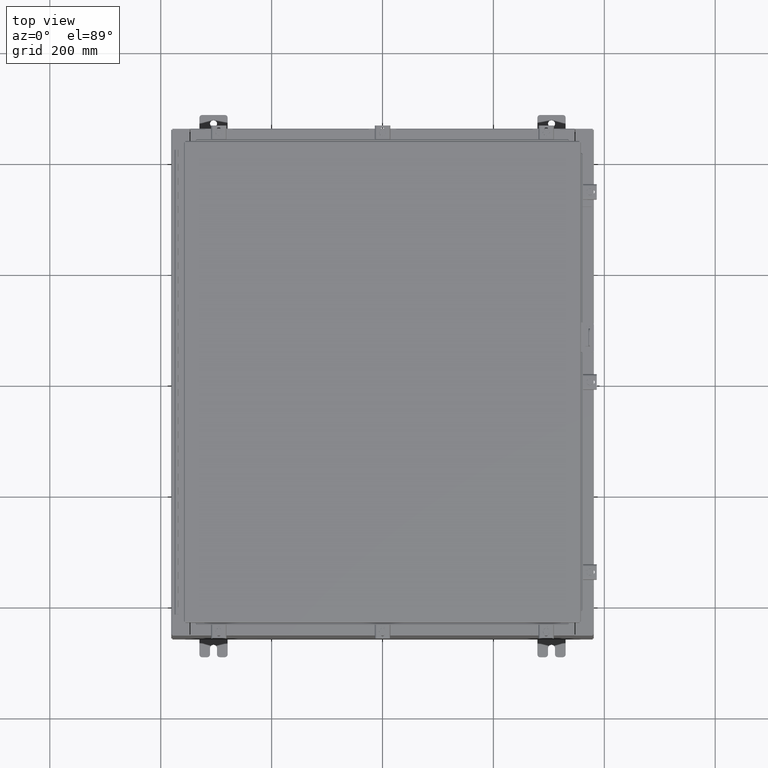
[diagram: clean part render]
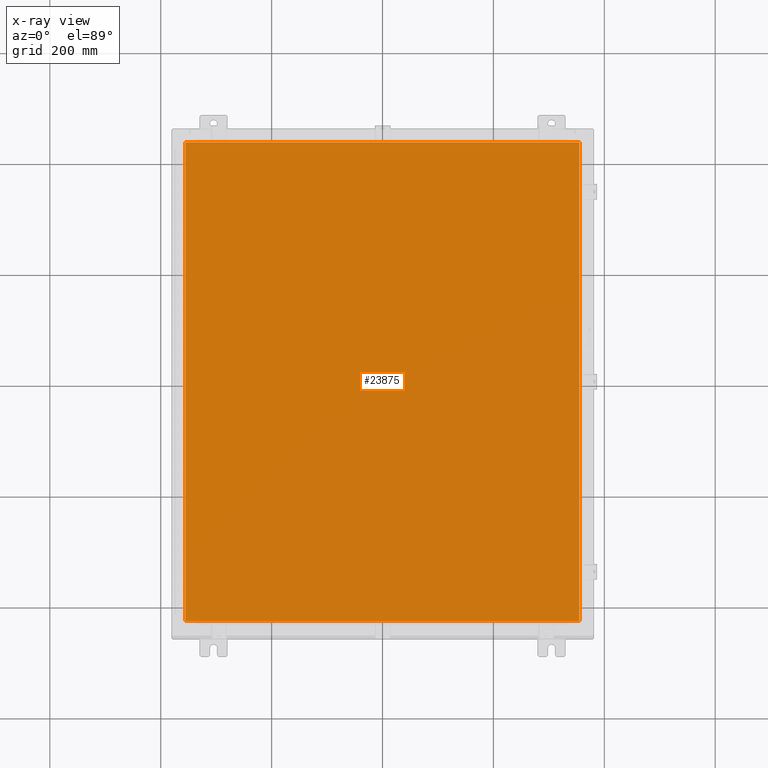
[diagram: x-ray — body ghosted, one internal face saturated and labeled with its STEP entity id]
A machine part, top view, then the same camera in x-ray: the body is ghosted and one INTERNAL B-rep face — a face not visible from any outside direction — is saturated and labeled: STEP entity #23875.
In plain terms, the highlighted planar face has unit normal (0, 0, -1).
Its self-contained STEP definition (entity closure, byte-faithful):
#784 = ORIENTED_EDGE ( 'NONE', *, *, #13631, .F. ) ;
#1005 = CARTESIAN_POINT ( 'NONE',  ( -13.99030000000000700, -17.00630000000000000, -0.07470000000000015500 ) ) ;
#2150 = CARTESIAN_POINT ( 'NONE',  ( 13.99029999999999200, -17.00630000000000000, -0.07470000000000015500 ) ) ;
#5559 = DIRECTION ( 'NONE',  ( 0.0000000000000000000, 1.000000000000000000, 0.0000000000000000000 ) ) ;
#5996 = PLANE ( 'NONE',  #12026 ) ;
#8399 = CARTESIAN_POINT ( 'NONE',  ( -13.99030000000000700, -17.00630000000000000, -0.07470000000000015500 ) ) ;
#9388 = DIRECTION ( 'NONE',  ( -1.000000000000000000, 0.0000000000000000000, -0.0000000000000000000 ) ) ;
#10831 = LINE ( 'NONE', #22026, #19842 ) ;
#12026 = AXIS2_PLACEMENT_3D ( 'NONE', #16067, #29628, #9388 ) ;
#13180 = DIRECTION ( 'NONE',  ( -1.000000000000000000, -0.0000000000000000000, -0.0000000000000000000 ) ) ;
#13220 = VERTEX_POINT ( 'NONE', #39207 ) ;
#13367 = FACE_OUTER_BOUND ( 'NONE', #41978, .T. ) ;
#13631 = EDGE_CURVE ( 'NONE', #35677, #33650, #33281, .T. ) ;
#15112 = VECTOR ( 'NONE', #13180, 39.37007874015748100 ) ;
#16067 = CARTESIAN_POINT ( 'NONE',  ( 0.0000000000000000000, 0.0000000000000000000, -0.07470000000000015500 ) ) ;
#16083 = ORIENTED_EDGE ( 'NONE', *, *, #39941, .F. ) ;
#16170 = LINE ( 'NONE', #16605, #15112 ) ;
#16605 = CARTESIAN_POINT ( 'NONE',  ( 13.99029999999999200, 17.00630000000000300, -0.07470000000000234800 ) ) ;
#19842 = VECTOR ( 'NONE', #42216, 39.37007874015748100 ) ;
#22026 = CARTESIAN_POINT ( 'NONE',  ( -13.99030000000000700, 17.00630000000000000, -0.07470000000000015500 ) ) ;
#23640 = EDGE_CURVE ( 'NONE', #27688, #35677, #33974, .T. ) ;
#23875 = ADVANCED_FACE ( 'NONE', ( #13367 ), #5996, .T. ) ;
#24493 = DIRECTION ( 'NONE',  ( 1.000000000000000000, -0.0000000000000000000, -0.0000000000000000000 ) ) ;
#26119 = ORIENTED_EDGE ( 'NONE', *, *, #23640, .F. ) ;
#27688 = VERTEX_POINT ( 'NONE', #8399 ) ;
#29628 = DIRECTION ( 'NONE',  ( 0.0000000000000000000, 0.0000000000000000000, -1.000000000000000000 ) ) ;
#30397 = CARTESIAN_POINT ( 'NONE',  ( 13.99029999999999200, -17.00630000000000000, -0.07470000000000015500 ) ) ;
#32215 = VECTOR ( 'NONE', #5559, 39.37007874015748100 ) ;
#33281 = LINE ( 'NONE', #2150, #32215 ) ;
#33650 = VERTEX_POINT ( 'NONE', #35725 ) ;
#33974 = LINE ( 'NONE', #1005, #40820 ) ;
#35677 = VERTEX_POINT ( 'NONE', #30397 ) ;
#35725 = CARTESIAN_POINT ( 'NONE',  ( 13.99029999999999200, 17.00630000000000300, -0.07470000000000015500 ) ) ;
#36365 = EDGE_CURVE ( 'NONE', #33650, #13220, #16170, .T. ) ;
#39207 = CARTESIAN_POINT ( 'NONE',  ( -13.99030000000000700, 17.00630000000000300, -0.07470000000000015500 ) ) ;
#39941 = EDGE_CURVE ( 'NONE', #13220, #27688, #10831, .T. ) ;
#40820 = VECTOR ( 'NONE', #24493, 39.37007874015748100 ) ;
#41978 = EDGE_LOOP ( 'NONE', ( #784, #26119, #16083, #42250 ) ) ;
#42216 = DIRECTION ( 'NONE',  ( 0.0000000000000000000, -1.000000000000000000, 0.0000000000000000000 ) ) ;
#42250 = ORIENTED_EDGE ( 'NONE', *, *, #36365, .F. ) ;